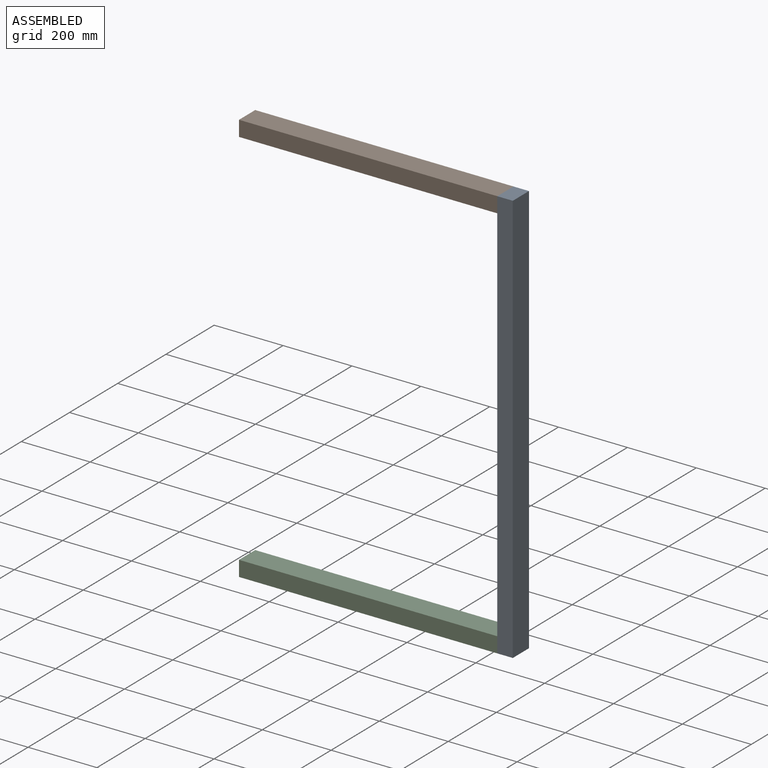
[diagram: assembled view]
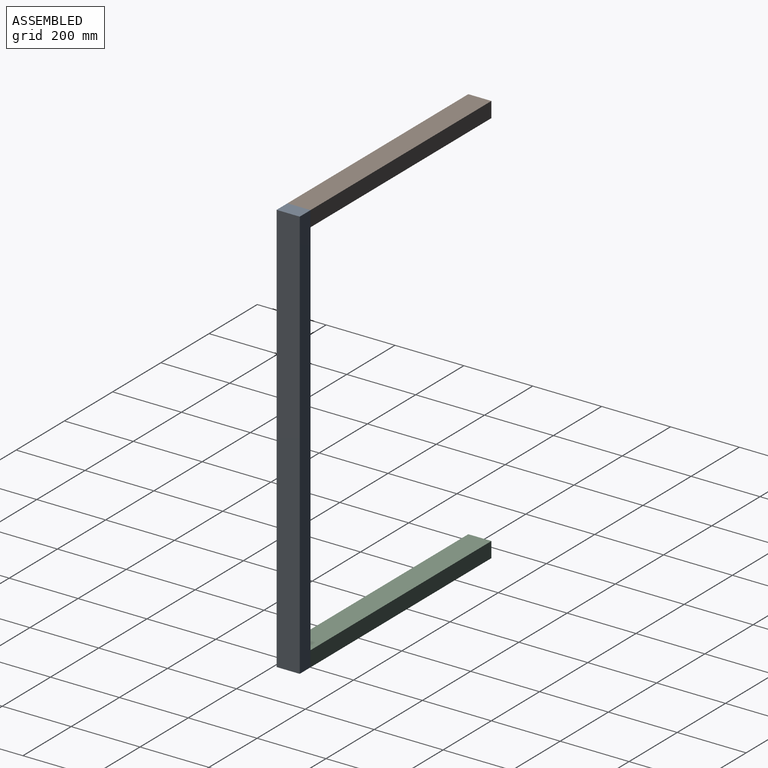
[diagram: assembled view, second angle]
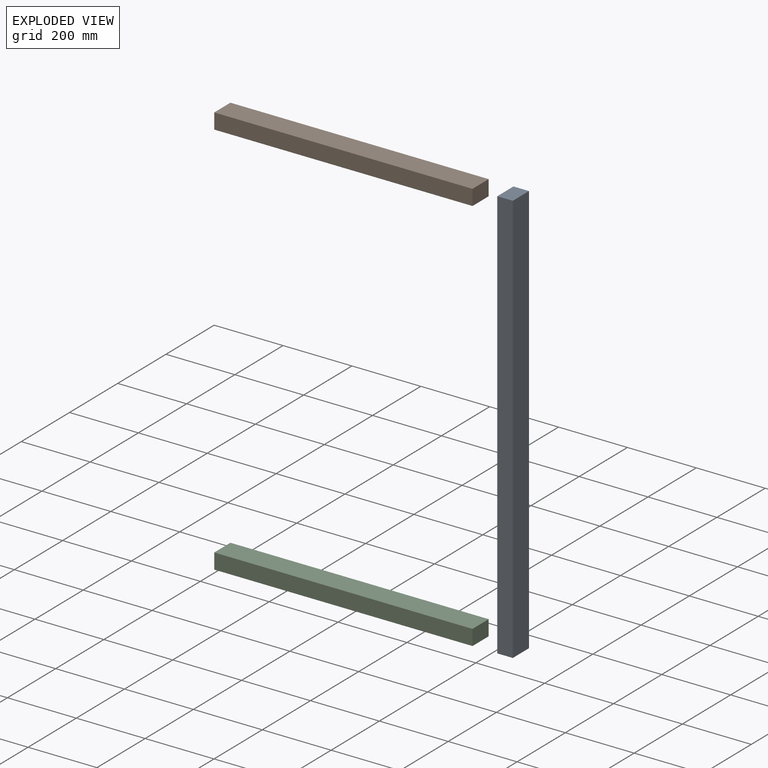
[diagram: exploded view]
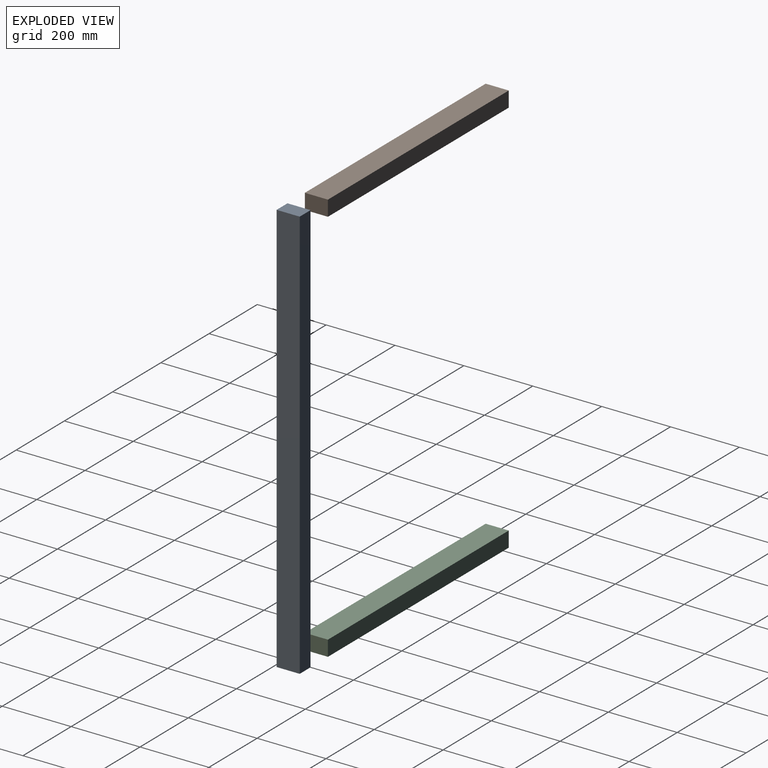
[diagram: exploded view, second angle]
ASSEMBLY  parts=3 mates=2
PART A: 6 faces, bbox 45x67x1200 mm
  f0: plane 67x45mm, normal (0,0,1), area 3015mm2, adj f1,f3,f4,f5
  f1: plane 1200x67mm, normal (-1,0,0), area 80400mm2, adj f0,f2,f4,f5
  f2: plane 67x45mm, normal (0,0,-1), area 3015mm2, adj f1,f3,f4,f5
  f3: plane 1200x67mm, normal (1,0,0), area 80400mm2, adj f0,f2,f4,f5
  f4: plane 1200x45mm, normal (0,-1,0), area 54000mm2, adj f0,f1,f2,f3
  f5: plane 1200x45mm, normal (0,1,0), area 54000mm2, adj f0,f1,f2,f3
PART B: 6 faces, bbox 45x750x67 mm
  f0: plane 67x45mm, normal (0,1,0), area 3015mm2, adj f1,f3,f4,f5
  f1: plane 750x67mm, normal (-1,0,0), area 50250mm2, adj f0,f2,f4,f5
  f2: plane 67x45mm, normal (0,-1,0), area 3015mm2, adj f1,f3,f4,f5
  f3: plane 750x67mm, normal (1,0,0), area 50250mm2, adj f0,f2,f4,f5
  f4: plane 750x45mm, normal (0,0,1), area 33750mm2, adj f0,f1,f2,f3
  f5: plane 750x45mm, normal (0,0,-1), area 33750mm2, adj f0,f1,f2,f3
PART C: same geometry as B
PLACE A rot(axis=(-0.04,1,-0.01),0deg) t=(-29.55,101.89,483.37)mm
PLACE B rot(axis=(0.58,0.58,-0.58),120deg) t=(-111.89,101.89,1005.69)mm
PLACE C rot(axis=(-0.58,0.58,0.58),120deg) t=(-561.89,34.89,-149.31)mm
MATE fastened A.f1 <-> B.f0  axis (-1,0,0) through (38.11,101.89,1028.19)mm
MATE fastened A.f1 <-> C.f2  axis (-1,0,0) through (38.11,101.89,-171.81)mm
